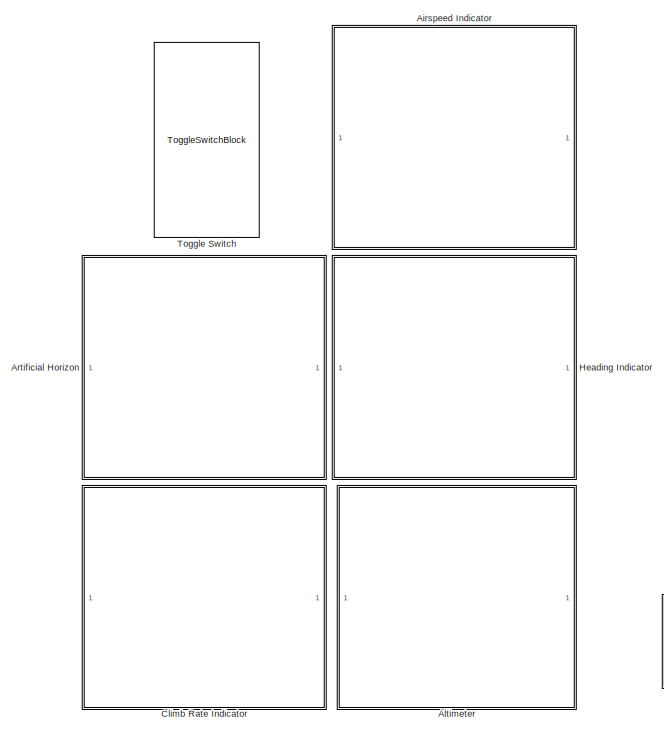
[diagram: root canvas - part 1/2, left side, full height]
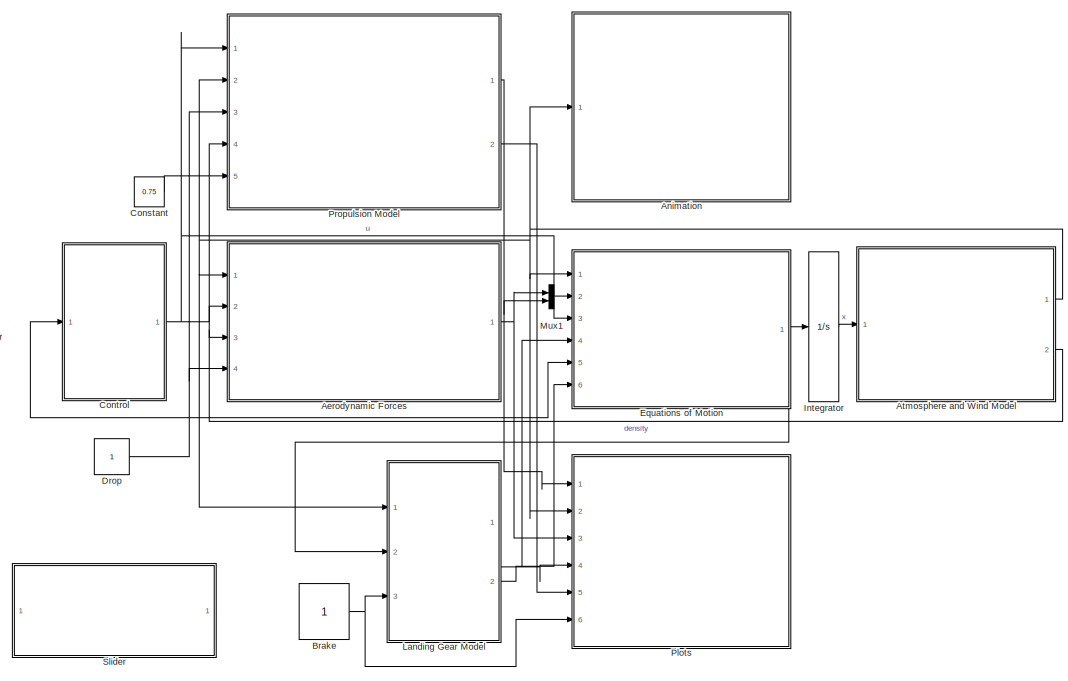
[diagram: root canvas - part 2/2, right side, full height]
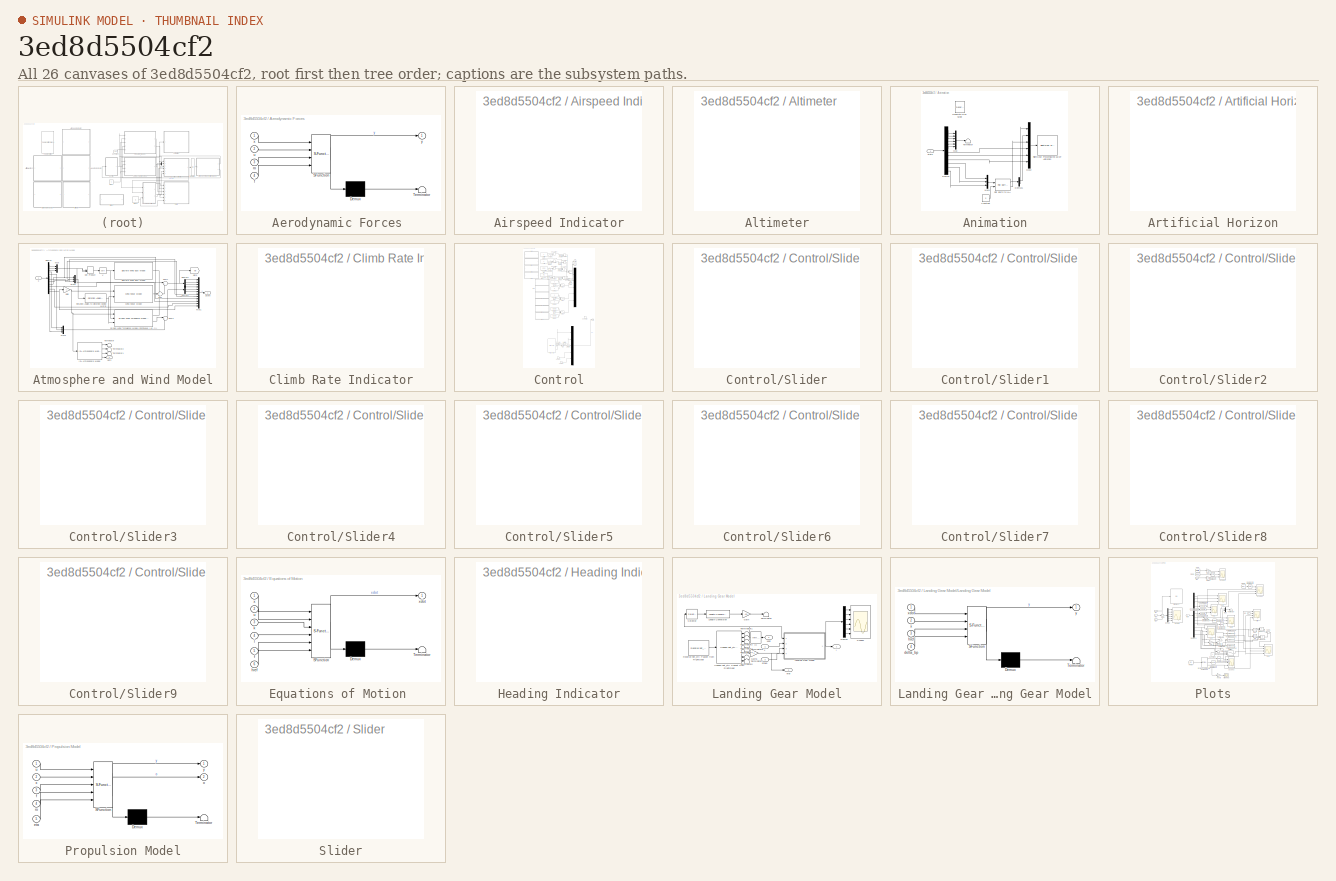
[diagram: thumbnail index - all 26 canvases of the model, root first then tree order]
MODEL slx_3ed8d5504cf2
KIND model
CONFIG AbsTol = auto
CONFIG EnableMultiTasking = on
CONFIG FixedStep = 1/480
CONFIG MaxStep = auto
CONFIG MinStep = auto
CONFIG RelTol = 1e-2
CONFIG SampleTimeConstraint = Unconstrained
CONFIG Solver = VariableStepAuto
CONFIG SolverName = VariableStepAuto
CONFIG StartTime = 0.0
CONFIG StopTime = 1000
WORKSPACE source: MAT-file member
WORKSPACE MCOS: class17 (value not decoded)
BLOCK [SubSystem] Aerodynamic Forces 
  ErrorFcn = Stateflow.Translate.translate
  PermitHierarchicalResolution = ExplicitOnly
  Ports = [4, 1]
  RequestExecContextInheritance = off
  SFBlockType = MATLAB Function
  TreatAsAtomicUnit = on
BLOCK [Demux] Aerodynamic Forces / Demux 
  Outputs = 1
  Ports = [1, 1]
BLOCK [S-Function] Aerodynamic Forces / SFunction 
  EnableBusSupport = on
  FunctionName = sf_sfun
  PortCounts = [4 2]
  Ports = [4, 2]
  SFcnIsStateOwnerBlock = off
  SFunctionDeploymentMode = off
  Tag = Stateflow S-Function Model 1
BLOCK [Terminator] Aerodynamic Forces / Terminator 
BLOCK [Inport] Aerodynamic Forces /f
  IconDisplay = Port number
  Port = 4
BLOCK [Inport] Aerodynamic Forces /ro
  IconDisplay = Port number
  Port = 3
BLOCK [Inport] Aerodynamic Forces /u
  IconDisplay = Port number
  Port = 2
BLOCK [Inport] Aerodynamic Forces /x
  IconDisplay = Port number
BLOCK [Outport] Aerodynamic Forces /y
  IconDisplay = Port number
BLOCK [SubSystem] Airspeed Indicator
  DialogController = aeroblksHMICreateDDGDialog
  IsWebBlock = on
  Ports = []
  RequestExecContextInheritance = off
BLOCK [SubSystem] Altimeter
  DialogController = aeroblksHMICreateDDGDialog
  IsWebBlock = on
  Ports = []
  RequestExecContextInheritance = off
BLOCK [SubSystem] Animation
  Ports = [1]
  RequestExecContextInheritance = off
BLOCK [Constant] Animation/Constant
  Value = 0
BLOCK [Demux] Animation/Demux
  DisplayOption = bar
  Outputs = 12
  Ports = [1, 12]
BLOCK [Demux] Animation/Demux1
  DisplayOption = bar
  Outputs = 2
  Ports = [1, 2]
BLOCK [Reference] Animation/Flat Earth to LLA  REF=aerolibtransform2/Flat Earth to LLA
  Ports = [2, 2]
  SourceBlock = aerolibtransform2/Flat Earth to LLA
  SourceProductBaseCode = AE
  SourceProductName = Aerospace Blockset
  SourceType = Flat Earth to LLA
BLOCK [Reference] Animation/FlightGear Preconfigured 6DoF Animation  REF=aerolibfltsims/FlightGear
Preconfigured
6DoF Animation
  AttributesFormatString = Version Selected: %<xFlightGearVersion>
  Ports = [1]
  SourceBlock = aerolibfltsims/FlightGear\nPreconfigured\n6DoF Animation
  SourceProductBaseCode = AE
  SourceProductName = Aerospace Blockset
  SourceType = FlightGearQuick6DoFAnimation
BLOCK [Reference] Animation/Generate Run Script  REF=aerolibfltsims/Generate
Run Script
  Ports = []
  SourceBlock = aerolibfltsims/Generate\nRun Script
  SourceProductBaseCode = AE
  SourceProductName = Aerospace Blockset
  SourceType = Generate FlightGear Run Script
BLOCK [Mux] Animation/Mux
  DisplayOption = bar
  Inputs = 6
  Ports = [6, 1]
BLOCK [Mux] Animation/Mux2
  DisplayOption = bar
  Inputs = 6
  Ports = [6, 1]
BLOCK [Mux] Animation/Mux3
  DisplayOption = bar
  Inputs = 3
  Ports = [3, 1]
BLOCK [Inport] Animation/State
  IconDisplay = Port number
BLOCK [Terminator] Animation/Terminator
BLOCK [SubSystem] Artificial Horizon
  DialogController = aeroblksHMICreateDDGDialog
  IsWebBlock = on
  Ports = []
  RequestExecContextInheritance = off
BLOCK [SubSystem] Atmosphere and Wind Model
  Ports = [1, 2]
  RequestExecContextInheritance = off
BLOCK [Demux] Atmosphere and Wind Model/Demux
  DisplayOption = bar
  Outputs = 12
  Ports = [1, 12]
BLOCK [Demux] Atmosphere and Wind Model/Demux1
  DisplayOption = bar
  Outputs = 3
  Ports = [1, 3]
BLOCK [Demux] Atmosphere and Wind Model/Demux2
  DisplayOption = bar
  Outputs = 3
  Ports = [1, 3]
BLOCK [Reference] Atmosphere and Wind Model/Discrete Wind Gust Model  REF=aerolibwind2/Discrete Wind Gust Model
  Ports = [1, 1]
  SourceBlock = aerolibwind2/Discrete Wind Gust Model
  SourceProductBaseCode = AE
  SourceProductName = Aerospace Blockset
  SourceType = Discrete Wind Gust Model
BLOCK [DotProduct] Atmosphere and Wind Model/Dot Product
  OutDataTypeStr = Inherit: Inherit via internal rule
BLOCK [Reference] Atmosphere and Wind Model/Dryden Wind Turbulence Model (Continuous (+q -r))  REF=aerolibwind2/Dryden Wind Turbulence Model 
(Continuous (+q -r))
  Ports = [3, 2]
  SourceBlock = aerolibwind2/Dryden Wind Turbulence Model \n(Continuous (+q -r))
  SourceProductBaseCode = AE
  SourceProductName = Aerospace Blockset
  SourceType = Wind Turbulence Model
BLOCK [Gain] Atmosphere and Wind Model/Gain
  Gain = -1
  OutDataTypeStr = Inherit: Inherit via internal rule
  ParamDataTypeStr = Inherit: Inherit via internal rule
  SaturateOnIntegerOverflow = off
BLOCK [Goto] Atmosphere and Wind Model/Goto
  GotoTag = Vb
  TagVisibility = global
BLOCK [Reference] Atmosphere and Wind Model/ISA Atmosphere Model  REF=aerolibatmos2/ISA Atmosphere Model
  Ports = [1, 4]
  SourceBlock = aerolibatmos2/ISA Atmosphere Model
  SourceProductBaseCode = AE
  SourceProductName = Aerospace Blockset
  SourceType = International Standard Atmosphere Model
BLOCK [Mux] Atmosphere and Wind Model/Mux
  DisplayOption = bar
  Inputs = 3
  Ports = [3, 1]
BLOCK [Mux] Atmosphere and Wind Model/Mux1
  DisplayOption = bar
  Inputs = 12
  Ports = [12, 1]
BLOCK [Mux] Atmosphere and Wind Model/Mux2
  DisplayOption = bar
  Inputs = 3
  Ports = [3, 1]
BLOCK [Mux] Atmosphere and Wind Model/Mux3
  DisplayOption = bar
  Inputs = 3
  Ports = [3, 1]
BLOCK [Outport] Atmosphere and Wind Model/Out2
  IconDisplay = Port number
  Port = 2
BLOCK [Reference] Atmosphere and Wind Model/Rotation Angles to Direction Cosine Matrix  REF=sharedtransform/Rotation Angles to
Direction Cosine Matrix
  AttributesFormatString = Rotation Order: %<rotationOrder>
  Ports = [1, 1]
  SourceBlock = sharedtransform/Rotation Angles to\nDirection Cosine Matrix
  SourceProductBaseCode = AE
  SourceProductName = Aerospace Blockset
  SourceType = Ang2DCM
BLOCK [Outport] Atmosphere and Wind Model/State
  IconDisplay = Port number
  PortDimensions = 12
BLOCK [Sum] Atmosphere and Wind Model/Sum
  IconShape = round
  InputSameDT = off
  Inputs = +++
  OutDataTypeStr = Inherit: Inherit via internal rule
  Ports = [3, 1]
  SaturateOnIntegerOverflow = off
BLOCK [Sum] Atmosphere and Wind Model/Sum1
  IconShape = round
  InputSameDT = off
  Inputs = |+-
  OutDataTypeStr = Inherit: Inherit via internal rule
  Ports = [2, 1]
  SaturateOnIntegerOverflow = off
BLOCK [Sum] Atmosphere and Wind Model/Sum2
  IconShape = round
  InputSameDT = off
  Inputs = |++
  OutDataTypeStr = Inherit: Inherit via internal rule
  Ports = [2, 1]
  SaturateOnIntegerOverflow = off
BLOCK [Terminator] Atmosphere and Wind Model/Terminator
BLOCK [Terminator] Atmosphere and Wind Model/Terminator1
BLOCK [Terminator] Atmosphere and Wind Model/Terminator2
BLOCK [Sqrt] Atmosphere and Wind Model/V
BLOCK [Reference] Atmosphere and Wind Model/Wind Shear Model  REF=aerolibwind2/Wind Shear Model
  Ports = [2, 1]
  SourceBlock = aerolibwind2/Wind Shear Model
  SourceProductBaseCode = AE
  SourceProductName = Aerospace Blockset
  SourceType = Wind Shear Model
BLOCK [Inport] Atmosphere and Wind Model/x
  IconDisplay = Port number
BLOCK [SubSystem] Climb Rate Indicator
  DialogController = aeroblksHMICreateDDGDialog
  IsWebBlock = on
  Ports = []
  RequestExecContextInheritance = off
BLOCK [Constant] Constant
  Value = 0.75
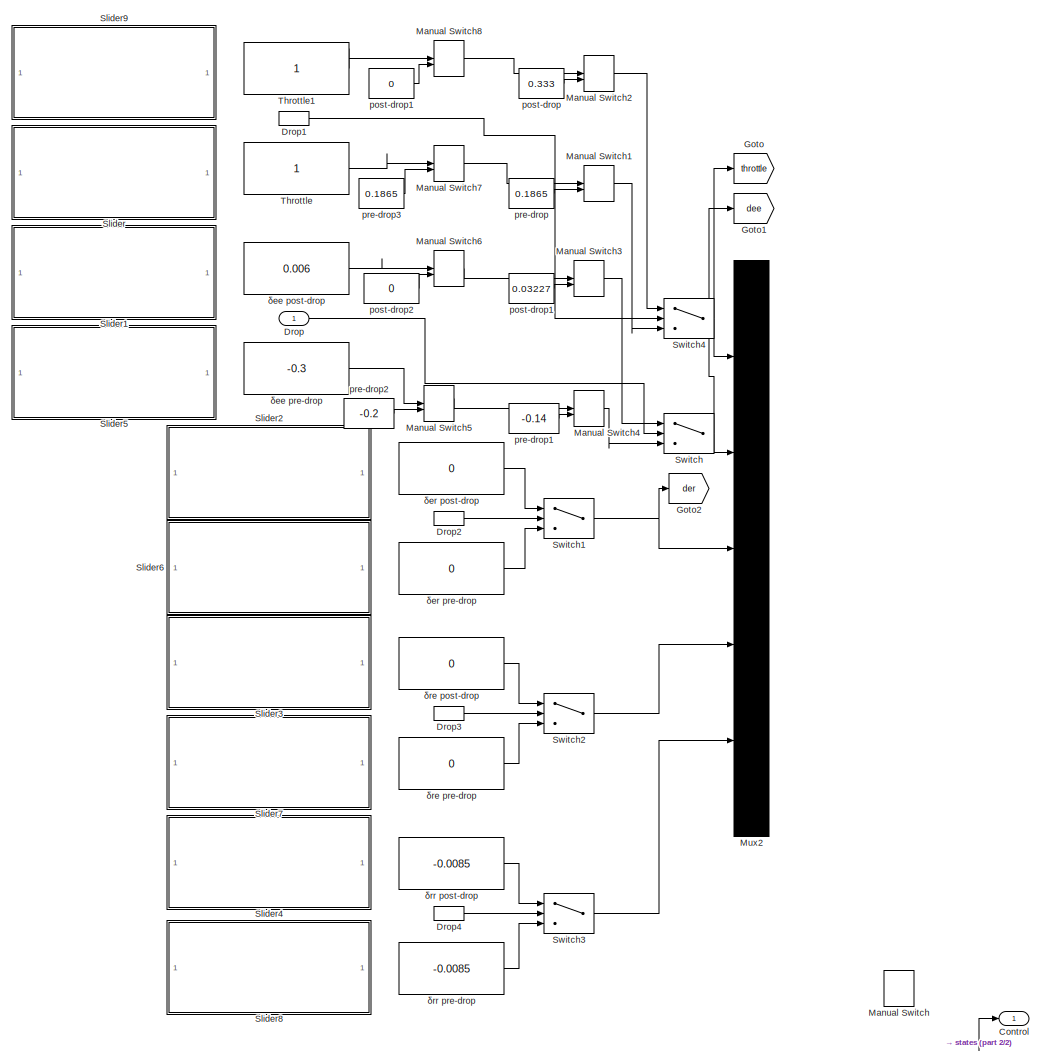
[diagram: Control - part 1/2, full width, top band]
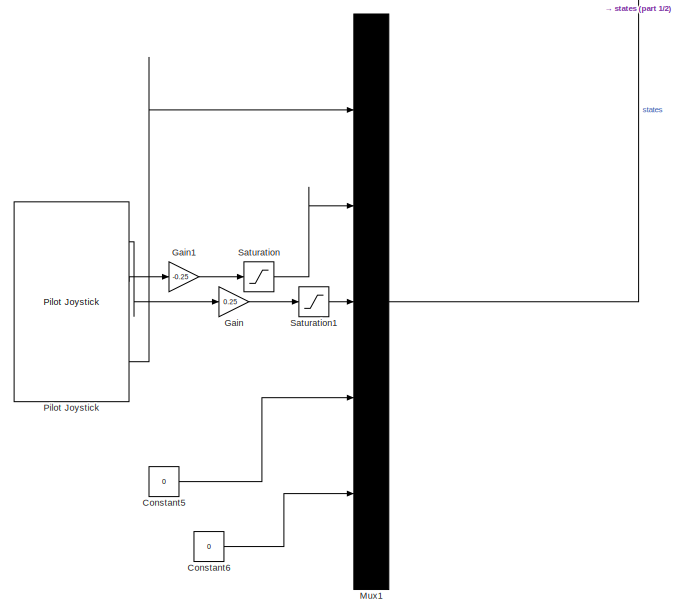
[diagram: Control - part 2/2, bottom center region]
BLOCK [SubSystem] Control
  Ports = [1, 1]
  RequestExecContextInheritance = off
BLOCK [Constant] Control/Constant5
  Value = 0
BLOCK [Constant] Control/Constant6
  Value = 0
BLOCK [Outport] Control/Control
  IconDisplay = Port number
BLOCK [Inport] Control/Drop
  IconDisplay = Port number
BLOCK [InportShadow] Control/Drop1
  IconDisplay = Port number
BLOCK [InportShadow] Control/Drop2
  IconDisplay = Port number
BLOCK [InportShadow] Control/Drop3
  IconDisplay = Port number
BLOCK [InportShadow] Control/Drop4
  IconDisplay = Port number
BLOCK [Gain] Control/Gain
  Gain = 0.25
  OutDataTypeStr = Inherit: Inherit via internal rule
  ParamDataTypeStr = Inherit: Inherit via internal rule
  SaturateOnIntegerOverflow = off
BLOCK [Gain] Control/Gain1
  Gain = -0.25
  OutDataTypeStr = Inherit: Inherit via internal rule
  ParamDataTypeStr = Inherit: Inherit via internal rule
  SaturateOnIntegerOverflow = off
BLOCK [Goto] Control/Goto
  Commented = on
  GotoTag = throttle
  TagVisibility = global
BLOCK [Goto] Control/Goto1
  Commented = on
  GotoTag = dee
  TagVisibility = global
BLOCK [Goto] Control/Goto2
  Commented = on
  GotoTag = der
  TagVisibility = global
BLOCK [ManualSwitch] Control/Manual Switch
  Commented = on
BLOCK [ManualSwitch] Control/Manual Switch1
  Commented = on
BLOCK [ManualSwitch] Control/Manual Switch2
  Commented = on
BLOCK [ManualSwitch] Control/Manual Switch3
  Commented = on
BLOCK [ManualSwitch] Control/Manual Switch4
  Commented = on
BLOCK [ManualSwitch] Control/Manual Switch5
  Commented = on
BLOCK [ManualSwitch] Control/Manual Switch6
  Commented = on
  CurrentSetting = 0
BLOCK [ManualSwitch] Control/Manual Switch7
  Commented = on
BLOCK [ManualSwitch] Control/Manual Switch8
  Commented = on
BLOCK [Mux] Control/Mux1
  DisplayOption = bar
  Inputs = 5
  Ports = [5, 1]
BLOCK [Mux] Control/Mux2
  Commented = on
  DisplayOption = bar
  Inputs = 5
  Ports = [5, 1]
BLOCK [Reference] Control/Pilot Joystick  REF=aerolibanimutils/Pilot Joystick
  Ports = [0, 4]
  SourceBlock = aerolibanimutils/Pilot Joystick
  SourceProductBaseCode = AE
  SourceProductName = Aerospace Blockset
  SourceType = PilotJoystick
BLOCK [Saturate] Control/Saturation
  InputPortMap = u0
  LowerLimit = -0.4
  Ports = [1, 1]
  UpperLimit = 0.4
BLOCK [Saturate] Control/Saturation1
  InputPortMap = u0
  LowerLimit = -0.4
  Ports = [1, 1]
  UpperLimit = 0.4
BLOCK [SubSystem] Control/Slider
  Commented = on
  DialogController = hmiCreateDDGDialog
  IsWebBlock = on
  MaskHideContents = on
  Ports = []
  RequestExecContextInheritance = off
BLOCK [SubSystem] Control/Slider1
  Commented = on
  DialogController = hmiCreateDDGDialog
  IsWebBlock = on
  MaskHideContents = on
  Ports = []
  RequestExecContextInheritance = off
BLOCK [SubSystem] Control/Slider2
  Commented = on
  DialogController = hmiCreateDDGDialog
  IsWebBlock = on
  MaskHideContents = on
  Ports = []
  RequestExecContextInheritance = off
BLOCK [SubSystem] Control/Slider3
  Commented = on
  DialogController = hmiCreateDDGDialog
  IsWebBlock = on
  MaskHideContents = on
  Ports = []
  RequestExecContextInheritance = off
BLOCK [SubSystem] Control/Slider4
  Commented = on
  DialogController = hmiCreateDDGDialog
  IsWebBlock = on
  MaskHideContents = on
  Ports = []
  RequestExecContextInheritance = off
BLOCK [SubSystem] Control/Slider5
  Commented = on
  DialogController = hmiCreateDDGDialog
  IsWebBlock = on
  MaskHideContents = on
  Ports = []
  RequestExecContextInheritance = off
BLOCK [SubSystem] Control/Slider6
  Commented = on
  DialogController = hmiCreateDDGDialog
  IsWebBlock = on
  MaskHideContents = on
  Ports = []
  RequestExecContextInheritance = off
BLOCK [SubSystem] Control/Slider7
  Commented = on
  DialogController = hmiCreateDDGDialog
  IsWebBlock = on
  MaskHideContents = on
  Ports = []
  RequestExecContextInheritance = off
BLOCK [SubSystem] Control/Slider8
  Commented = on
  DialogController = hmiCreateDDGDialog
  IsWebBlock = on
  MaskHideContents = on
  Ports = []
  RequestExecContextInheritance = off
BLOCK [SubSystem] Control/Slider9
  Commented = on
  DialogController = hmiCreateDDGDialog
  IsWebBlock = on
  MaskHideContents = on
  Ports = []
  RequestExecContextInheritance = off
BLOCK [Switch] Control/Switch
  Commented = on
  Criteria = u2 > Threshold
  InputSameDT = off
  SaturateOnIntegerOverflow = off
  Threshold = 0.5
BLOCK [Switch] Control/Switch1
  Commented = on
  Criteria = u2 > Threshold
  InputSameDT = off
  SaturateOnIntegerOverflow = off
  Threshold = 0.5
BLOCK [Switch] Control/Switch2
  Commented = on
  Criteria = u2 > Threshold
  InputSameDT = off
  SaturateOnIntegerOverflow = off
  Threshold = 0.5
BLOCK [Switch] Control/Switch3
  Commented = on
  Criteria = u2 > Threshold
  InputSameDT = off
  SaturateOnIntegerOverflow = off
  Threshold = 0.5
BLOCK [Switch] Control/Switch4
  Commented = on
  Criteria = u2 > Threshold
  InputSameDT = off
  SaturateOnIntegerOverflow = off
  Threshold = 0.5
BLOCK [Constant] Control/Throttle
  Commented = on
BLOCK [Constant] Control/Throttle1
  Commented = on
BLOCK [Constant] Control/post-drop1
  Commented = on
  Value = 0.03227
BLOCK [Constant] Control/post-drop2
  Commented = on
  Value = 0
BLOCK [Constant] Control/pre-drop
  Commented = on
  Value = 0.1865
BLOCK [Constant] Control/pre-drop1
  Commented = on
  Value = -0.14
BLOCK [Constant] Control/pre-drop2
  Commented = on
  Value = -0.2
BLOCK [Constant] Control/pre-drop3
  Commented = on
  Value = 0.1865
BLOCK [Constant] Control/pοst-drop
  Commented = on
  Value = 0.333
BLOCK [Constant] Control/pοst-drop1
  Commented = on
  Value = 0
BLOCK [Constant] Control/δee post-drop
  Commented = on
  Value = 0.006
BLOCK [Constant] Control/δee pre-drop
  Commented = on
  Value = -0.3
BLOCK [Constant] Control/δer post-drop
  Commented = on
  Value = 0
BLOCK [Constant] Control/δer pre-drop
  Commented = on
  Value = 0
BLOCK [Constant] Control/δre post-drop
  Commented = on
  Value = 0
BLOCK [Constant] Control/δre pre-drop
  Commented = on
  Value = 0
BLOCK [Constant] Control/δrr post-drop
  Commented = on
  Value = -0.0085
BLOCK [Constant] Control/δrr pre-drop
  Commented = on
  Value = -0.0085
BLOCK [Constant] Drop
BLOCK [SubSystem] Equations of Motion 
  ErrorFcn = Stateflow.Translate.translate
  PermitHierarchicalResolution = ExplicitOnly
  Ports = [6, 1]
  RequestExecContextInheritance = off
  SFBlockType = MATLAB Function
  TreatAsAtomicUnit = on
BLOCK [Demux] Equations of Motion / Demux 
  Outputs = 1
  Ports = [1, 1]
BLOCK [S-Function] Equations of Motion / SFunction 
  EnableBusSupport = on
  FunctionName = sf_sfun
  PortCounts = [6 2]
  Ports = [6, 2]
  SFcnIsStateOwnerBlock = off
  SFunctionDeploymentMode = off
  Tag = Stateflow S-Function Model 3
BLOCK [Terminator] Equations of Motion / Terminator 
BLOCK [Inport] Equations of Motion /f
  IconDisplay = Port number
  Port = 5
BLOCK [Inport] Equations of Motion /href
  IconDisplay = Port number
  Port = 6
BLOCK [Inport] Equations of Motion /k
  IconDisplay = Port number
  Port = 3
BLOCK [Inport] Equations of Motion /l
  IconDisplay = Port number
  Port = 4
BLOCK [Inport] Equations of Motion /u
  IconDisplay = Port number
  Port = 2
BLOCK [Inport] Equations of Motion /x
  IconDisplay = Port number
BLOCK [Outport] Equations of Motion /xdot
  IconDisplay = Port number
BLOCK [SubSystem] Heading Indicator
  DialogController = aeroblksHMICreateDDGDialog
  IsWebBlock = on
  Ports = []
  RequestExecContextInheritance = off
BLOCK [Integrator] Integrator
  InitialCondition = [30 0 0 0 0 0 0 0 0 0 0 -50]'
  Ports = [1, 1]
BLOCK [SubSystem] Landing Gear Model
  Ports = [3, 2]
  RequestExecContextInheritance = off
BLOCK [Demux] Landing Gear Model/Demux
  DisplayOption = bar
  Outputs = 6
  Ports = [1, 6]
BLOCK [Gain] Landing Gear Model/Gain
  Gain = -60
  OutDataTypeStr = Inherit: Inherit via internal rule
  ParamDataTypeStr = Inherit: Inherit via internal rule
  SaturateOnIntegerOverflow = off
BLOCK [Gain] Landing Gear Model/Gain1
  Gain = -1
  OutDataTypeStr = Inherit: Inherit via internal rule
  ParamDataTypeStr = Inherit: Inherit via internal rule
  SaturateOnIntegerOverflow = off
BLOCK [InitialCondition] Landing Gear Model/IC
  Value = [0 0 0 0 0 0 0 0 0 0 0 0]'
BLOCK [SubSystem] Landing Gear Model/Landing Gear Model
  ErrorFcn = Stateflow.Translate.translate
  PermitHierarchicalResolution = ExplicitOnly
  Ports = [4, 1]
  RequestExecContextInheritance = off
  SFBlockType = MATLAB Function
  TreatAsAtomicUnit = on
BLOCK [Demux] Landing Gear Model/Landing Gear Model/ Demux 
  Outputs = 1
  Ports = [1, 1]
BLOCK [S-Function] Landing Gear Model/Landing Gear Model/ SFunction 
  EnableBusSupport = on
  FunctionName = sf_sfun
  PortCounts = [4 2]
  Ports = [4, 2]
  SFcnIsStateOwnerBlock = off
  SFunctionDeploymentMode = off
  Tag = Stateflow S-Function Model 4
BLOCK [Terminator] Landing Gear Model/Landing Gear Model/ Terminator 
BLOCK [Inport] Landing Gear Model/Landing Gear Model/delta_bp
  IconDisplay = Port number
  Port = 4
BLOCK [Inport] Landing Gear Model/Landing Gear Model/href
  IconDisplay = Port number
  Port = 3
BLOCK [Inport] Landing Gear Model/Landing Gear Model/x
  IconDisplay = Port number
  Port = 2
BLOCK [Inport] Landing Gear Model/Landing Gear Model/xdot
  IconDisplay = Port number
BLOCK [Outport] Landing Gear Model/Landing Gear Model/y
  IconDisplay = Port number
BLOCK [Reference] Landing Gear Model/Length Conversion  REF=aerolibconvert2/Length Conversion
  Ports = [1, 1]
  SourceBlock = aerolibconvert2/Length Conversion
  SourceProductBaseCode = AE
  SourceProductName = Aerospace Blockset
  SourceType = Length Conversion
BLOCK [Reference] Landing Gear Model/Receive net_ctrl Packet from FlightGear  REF=aerolibfltsims/Receive net_ctrl
Packet from FlightGear
  AttributesFormatString = Version Selected:\n%<FlightGearVersion>
  Ports = [0, 1]
  SourceBlock = aerolibfltsims/Receive net_ctrl\nPacket from FlightGear
  SourceProductBaseCode = AE
  SourceProductName = Aerospace Blockset
  SourceType = FlightGearReceiveNetCtrl
BLOCK [Scope] Landing Gear Model/Scope1
  Floating = off
  NumInputPorts = 6
  Ports = [6]
  ScopeSpecificationString = Simulink.scopes.TimeScopeBlockCfg('CurrentConfiguration', extmgr.ConfigurationSet(extmgr.Configuration('Core','General UI',true),extmgr.Configuration('Core','Source UI',true),extmgr.Configuration('Sources','WiredSimulink',true,'DataLoggingVariableName','ScopeData1'),extmgr.Configuration('Visuals','Time Domain',true,'SerializedDisplays',{struct('MinYLimReal','-586.80803','MaxYLimReal','280.79932','...<+4888ch>
BLOCK [Selector] Landing Gear Model/Selector
  IndexOptions = Index vector (dialog)
  Indices = [12]
  InputPortWidth = 12
  OutputSizes = 1
  Ports = [1, 1]
BLOCK [Terminator] Landing Gear Model/Terminator
BLOCK [Terminator] Landing Gear Model/Terminator1
BLOCK [Terminator] Landing Gear Model/Terminator2
BLOCK [Terminator] Landing Gear Model/Terminator3
BLOCK [Terminator] Landing Gear Model/Terminator4
BLOCK [Terminator] Landing Gear Model/Terminator5
BLOCK [Terminator] Landing Gear Model/Terminator6
BLOCK [Terminator] Landing Gear Model/Terminator7
BLOCK [Reference] Landing Gear Model/Unpack net_ctrl Packet from FlightGear  REF=aerolibfltsims/Unpack
net_ctrl Packet
from FlightGear
  AttributesFormatString = Version Selected: %<FlightGearVersion>
  Ports = [1, 8]
  SourceBlock = aerolibfltsims/Unpack\nnet_ctrl Packet\nfrom FlightGear
  SourceProductBaseCode = AE
  SourceProductName = Aerospace Blockset
  SourceType = FlightGearUnpackNetCtrl
BLOCK [Inport] Landing Gear Model/brake
  IconDisplay = Port number
  Port = 3
BLOCK [Outport] Landing Gear Model/href
  IconDisplay = Port number
  Port = 2
BLOCK [Outport] Landing Gear Model/l
  IconDisplay = Port number
BLOCK [Inport] Landing Gear Model/x
  IconDisplay = Port number
BLOCK [Inport] Landing Gear Model/xdot
  IconDisplay = Port number
  Port = 2
BLOCK [Mux] Mux1
  DisplayOption = bar
  Inputs = 2
  Ports = [2, 1]
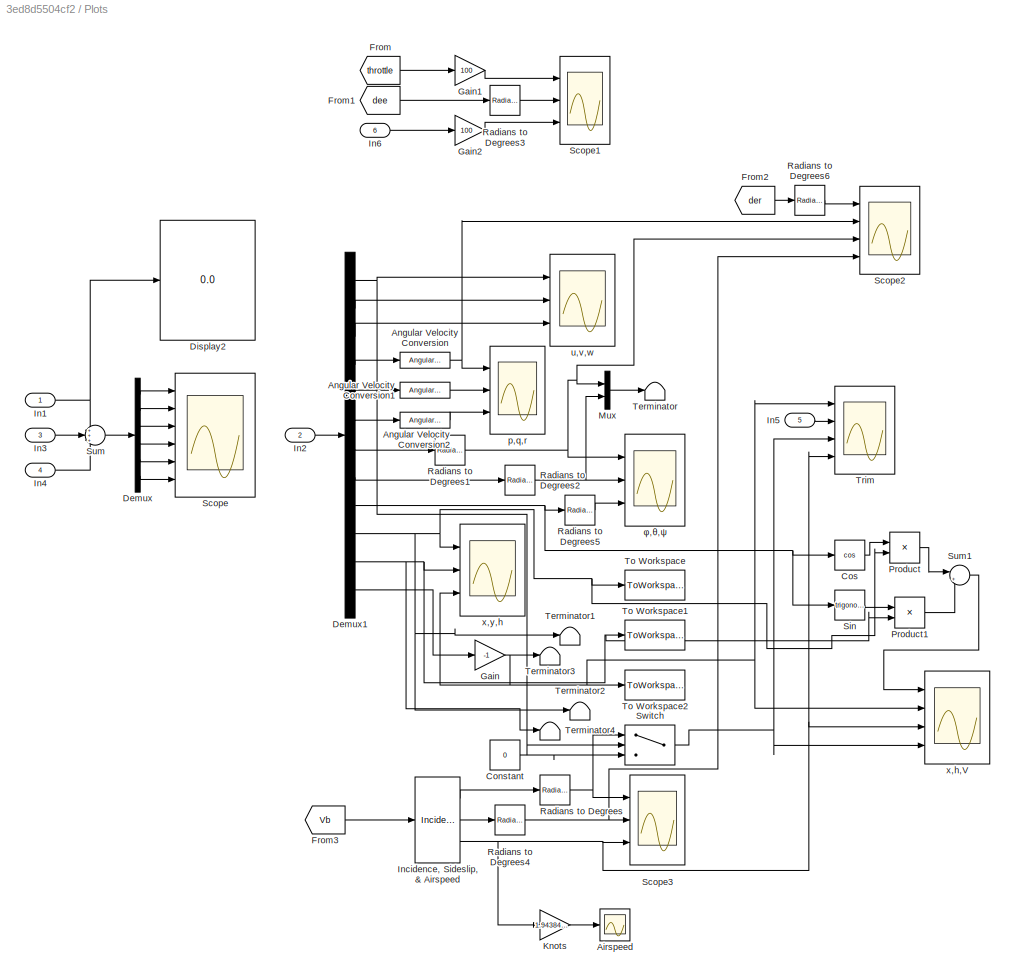
BLOCK [SubSystem] Plots
  Ports = [6]
  RequestExecContextInheritance = off
BLOCK [Scope] Plots/Airspeed
  Floating = off
  NumInputPorts = 1
  Ports = [1]
  ScopeSpecificationString = Simulink.scopes.TimeScopeBlockCfg('CurrentConfiguration', extmgr.ConfigurationSet(extmgr.Configuration('Core','General UI',true),extmgr.Configuration('Core','Source UI',true),extmgr.Configuration('Sources','WiredSimulink',true,'DataLoggingVariableName','ScopeData3'),extmgr.Configuration('Visuals','Time Domain',true,'SerializedDisplays',{struct('MinYLimReal','0','MaxYLimReal','200','YLabelReal','V ...<+1415ch>
BLOCK [Reference] Plots/Angular Velocity Conversion  REF=aerolibconvert2/Angular Velocity
Conversion
  Ports = [1, 1]
  SourceBlock = aerolibconvert2/Angular Velocity\nConversion
  SourceProductBaseCode = AE
  SourceProductName = Aerospace Blockset
  SourceType = Angular Velocity Conversion
BLOCK [Reference] Plots/Angular Velocity Conversion1  REF=aerolibconvert2/Angular Velocity
Conversion
  Ports = [1, 1]
  SourceBlock = aerolibconvert2/Angular Velocity\nConversion
  SourceProductBaseCode = AE
  SourceProductName = Aerospace Blockset
  SourceType = Angular Velocity Conversion
BLOCK [Reference] Plots/Angular Velocity Conversion2  REF=aerolibconvert2/Angular Velocity
Conversion
  Ports = [1, 1]
  SourceBlock = aerolibconvert2/Angular Velocity\nConversion
  SourceProductBaseCode = AE
  SourceProductName = Aerospace Blockset
  SourceType = Angular Velocity Conversion
BLOCK [Constant] Plots/Constant
  Value = 0
BLOCK [Trigonometry] Plots/Cos
  Operator = cos
  Ports = [1, 1]
BLOCK [Demux] Plots/Demux
  DisplayOption = bar
  Outputs = 6
  Ports = [1, 6]
BLOCK [Demux] Plots/Demux1
  DisplayOption = bar
  Outputs = 12
  Ports = [1, 12]
BLOCK [Display] Plots/Display2
  Decimation = 1
  Ports = [1]
BLOCK [From] Plots/From
  GotoTag = throttle
BLOCK [From] Plots/From1
  GotoTag = dee
BLOCK [From] Plots/From2
  GotoTag = der
BLOCK [From] Plots/From3
  GotoTag = Vb
  TagVisibility = global
BLOCK [Gain] Plots/Gain
  Gain = -1
  OutDataTypeStr = Inherit: Inherit via internal rule
  ParamDataTypeStr = Inherit: Inherit via internal rule
  SaturateOnIntegerOverflow = off
BLOCK [Gain] Plots/Gain1
  Gain = 100
  OutDataTypeStr = Inherit: Inherit via internal rule
  ParamDataTypeStr = Inherit: Inherit via internal rule
  SaturateOnIntegerOverflow = off
BLOCK [Gain] Plots/Gain2
  Gain = 100
  OutDataTypeStr = Inherit: Inherit via internal rule
  ParamDataTypeStr = Inherit: Inherit via internal rule
  SaturateOnIntegerOverflow = off
BLOCK [Inport] Plots/In1
  IconDisplay = Port number
BLOCK [Inport] Plots/In2
  IconDisplay = Port number
  Port = 2
BLOCK [Inport] Plots/In3
  IconDisplay = Port number
  Port = 3
BLOCK [Inport] Plots/In4
  IconDisplay = Port number
  Port = 4
BLOCK [Inport] Plots/In5
  IconDisplay = Port number
  Port = 5
BLOCK [Inport] Plots/In6
  IconDisplay = Port number
  Port = 6
BLOCK [Reference] Plots/Incidence, Sideslip, & Airspeed  REF=aerolibasang/Incidence, Sideslip,
& Airspeed
  Ports = [1, 3]
  SourceBlock = aerolibasang/Incidence, Sideslip,\n& Airspeed
  SourceProductBaseCode = AE
  SourceProductName = Aerospace Blockset
  SourceType = Incidence,Sideslip,&Airspeed
BLOCK [Gain] Plots/Knots
  Gain = 1.94384449
  OutDataTypeStr = Inherit: Inherit via internal rule
  ParamDataTypeStr = Inherit: Inherit via internal rule
  SaturateOnIntegerOverflow = off
BLOCK [Mux] Plots/Mux
  DisplayOption = bar
  Inputs = 2
  Ports = [2, 1]
BLOCK [Product] Plots/Product
  InputSameDT = off
  OutDataTypeStr = Inherit: Inherit via internal rule
  Ports = [2, 1]
  RndMeth = Floor
  SaturateOnIntegerOverflow = off
BLOCK [Product] Plots/Product1
  InputSameDT = off
  OutDataTypeStr = Inherit: Inherit via internal rule
  Ports = [2, 1]
  RndMeth = Floor
  SaturateOnIntegerOverflow = off
BLOCK [Reference] Plots/Radians to Degrees  REF=simulink_extras/Transformations/Radians
to Degrees
  Ports = [1, 1]
  SourceBlock = simulink_extras/Transformations/Radians\nto Degrees
  SourceProductBaseCode = SL
  SourceProductName = Simulink
  SourceType = RadiansToDegrees
BLOCK [Reference] Plots/Radians to Degrees1  REF=simulink_extras/Transformations/Radians
to Degrees
  Ports = [1, 1]
  SourceBlock = simulink_extras/Transformations/Radians\nto Degrees
  SourceProductBaseCode = SL
  SourceProductName = Simulink
  SourceType = RadiansToDegrees
BLOCK [Reference] Plots/Radians to Degrees2  REF=simulink_extras/Transformations/Radians
to Degrees
  Ports = [1, 1]
  SourceBlock = simulink_extras/Transformations/Radians\nto Degrees
  SourceProductBaseCode = SL
  SourceProductName = Simulink
  SourceType = RadiansToDegrees
BLOCK [Reference] Plots/Radians to Degrees3  REF=simulink_extras/Transformations/Radians
to Degrees
  Ports = [1, 1]
  SourceBlock = simulink_extras/Transformations/Radians\nto Degrees
  SourceProductBaseCode = SL
  SourceProductName = Simulink
  SourceType = RadiansToDegrees
BLOCK [Reference] Plots/Radians to Degrees4  REF=simulink_extras/Transformations/Radians
to Degrees
  Ports = [1, 1]
  SourceBlock = simulink_extras/Transformations/Radians\nto Degrees
  SourceProductBaseCode = SL
  SourceProductName = Simulink
  SourceType = RadiansToDegrees
BLOCK [Reference] Plots/Radians to Degrees5  REF=simulink_extras/Transformations/Radians
to Degrees
  Ports = [1, 1]
  SourceBlock = simulink_extras/Transformations/Radians\nto Degrees
  SourceProductBaseCode = SL
  SourceProductName = Simulink
  SourceType = RadiansToDegrees
BLOCK [Reference] Plots/Radians to Degrees6  REF=simulink_extras/Transformations/Radians
to Degrees
  Ports = [1, 1]
  SourceBlock = simulink_extras/Transformations/Radians\nto Degrees
  SourceProductBaseCode = SL
  SourceProductName = Simulink
  SourceType = RadiansToDegrees
BLOCK [Scope] Plots/Scope
  Floating = off
  NumInputPorts = 6
  Ports = [6]
  ScopeSpecificationString = Simulink.scopes.TimeScopeBlockCfg('CurrentConfiguration', extmgr.ConfigurationSet(extmgr.Configuration('Core','General UI',true),extmgr.Configuration('Core','Source UI',true),extmgr.Configuration('Sources','WiredSimulink',true,'DataLoggingVariableName','ScopeData3'),extmgr.Configuration('Visuals','Time Domain',true,'SerializedDisplays',{struct('MinYLimReal','9.32432','MaxYLimReal','367.48521','YLa...<+4822ch>
BLOCK [Scope] Plots/Scope1
  Floating = off
  NumInputPorts = 3
  Ports = [3]
  ScopeSpecificationString = Simulink.scopes.TimeScopeBlockCfg('CurrentConfiguration', extmgr.ConfigurationSet(extmgr.Configuration('Core','General UI',true),extmgr.Configuration('Core','Source UI',true),extmgr.Configuration('Sources','WiredSimulink',true,'DataLoggingVariableName','ScopeData1'),extmgr.Configuration('Visuals','Time Domain',true,'SerializedDisplays',{struct('MinYLimReal','90.00000','MaxYLimReal','110.00000','YL...<+2772ch>
BLOCK [Scope] Plots/Scope2
  Floating = off
  NumInputPorts = 4
  Ports = [4]
  ScopeSpecificationString = Simulink.scopes.TimeScopeBlockCfg('CurrentConfiguration', extmgr.ConfigurationSet(extmgr.Configuration('Core','General UI',true),extmgr.Configuration('Core','Source UI',true),extmgr.Configuration('Sources','WiredSimulink',true,'DataLoggingVariableName','ScopeData1'),extmgr.Configuration('Visuals','Time Domain',true,'SerializedDisplays',{struct('MinYLimReal','-0.12175','MaxYLimReal','1.09578','YLab...<+3542ch>
BLOCK [Scope] Plots/Scope3
  Floating = off
  NumInputPorts = 3
  Ports = [3]
  ScopeSpecificationString = Simulink.scopes.TimeScopeBlockCfg('CurrentConfiguration', extmgr.ConfigurationSet(extmgr.Configuration('Core','General UI',true),extmgr.Configuration('Core','Source UI',true),extmgr.Configuration('Sources','WiredSimulink',true,'DataLoggingVariableName','ScopeData4'),extmgr.Configuration('Visuals','Time Domain',true,'SerializedDisplays',{struct('MinYLimReal','-0.59152','MaxYLimReal','7.09666','YLab...<+2807ch>
BLOCK [Trigonometry] Plots/Sin
  Ports = [1, 1]
BLOCK [Sum] Plots/Sum
  IconShape = round
  InputSameDT = off
  Inputs = +++
  OutDataTypeStr = Inherit: Inherit via internal rule
  Ports = [3, 1]
  SaturateOnIntegerOverflow = off
BLOCK [Sum] Plots/Sum1
  IconShape = round
  InputSameDT = off
  Inputs = |++
  OutDataTypeStr = Inherit: Inherit via internal rule
  Ports = [2, 1]
  SaturateOnIntegerOverflow = off
BLOCK [Switch] Plots/Switch
  Criteria = u2 > Threshold
  InputSameDT = off
  SaturateOnIntegerOverflow = off
  Threshold = 5
BLOCK [Terminator] Plots/Terminator
BLOCK [Terminator] Plots/Terminator1
BLOCK [Terminator] Plots/Terminator2
BLOCK [Terminator] Plots/Terminator3
BLOCK [Terminator] Plots/Terminator4
BLOCK [ToWorkspace] Plots/To Workspace
  FixptAsFi = on
  MaxDataPoints = inf
  Ports = [1]
  SampleTime = -1
  Save2DSignal = 3-D array (concatenate along third dimension)
  VariableName = Xe
BLOCK [ToWorkspace] Plots/To Workspace1
  FixptAsFi = on
  MaxDataPoints = inf
  Ports = [1]
  SampleTime = -1
  Save2DSignal = 3-D array (concatenate along third dimension)
  VariableName = Ye
BLOCK [ToWorkspace] Plots/To Workspace2
  FixptAsFi = on
  MaxDataPoints = inf
  Ports = [1]
  SampleTime = -1
  Save2DSignal = 3-D array (concatenate along third dimension)
  VariableName = h
BLOCK [Scope] Plots/Trim
  Floating = off
  NumInputPorts = 4
  Ports = [4]
  ScopeSpecificationString = Simulink.scopes.TimeScopeBlockCfg('CurrentConfiguration', extmgr.ConfigurationSet(extmgr.Configuration('Core','General UI',true),extmgr.Configuration('Core','Source UI',true),extmgr.Configuration('Sources','WiredSimulink',true,'DataLoggingVariableName','ScopeData2'),extmgr.Configuration('Visuals','Time Domain',true,'SerializedDisplays',{struct('MinYLimReal','-50.14207','MaxYLimReal','499.77256','Y...<+3516ch>
BLOCK [Scope] Plots/p,q,r
  Floating = off
  NumInputPorts = 3
  Ports = [3]
  ScopeSpecificationString = Simulink.scopes.TimeScopeBlockCfg('CurrentConfiguration', extmgr.ConfigurationSet(extmgr.Configuration('Core','General UI',true),extmgr.Configuration('Core','Source UI',true),extmgr.Configuration('Sources','WiredSimulink',true,'DataLoggingVariableName','ScopeData1'),extmgr.Configuration('Visuals','Time Domain',true,'SerializedDisplays',{struct('MinYLimReal','-1.61243','MaxYLimReal','0.27425','YLab...<+2827ch>
BLOCK [Scope] Plots/u,v,w
  Floating = off
  NumInputPorts = 3
  Ports = [3]
  ScopeSpecificationString = Simulink.scopes.TimeScopeBlockCfg('CurrentConfiguration', extmgr.ConfigurationSet(extmgr.Configuration('Core','General UI',true),extmgr.Configuration('Core','Source UI',true),extmgr.Configuration('Sources','WiredSimulink',true,'DataLoggingVariableName','ScopeData2'),extmgr.Configuration('Visuals','Time Domain',true,'SerializedDisplays',{struct('MinYLimReal','-8.52591','MaxYLimReal','76.68739','YLa...<+2763ch>
BLOCK [Scope] Plots/x,h,V
  Floating = off
  NumInputPorts = 4
  Ports = [4]
  ScopeSpecificationString = Simulink.scopes.TimeScopeBlockCfg('CurrentConfiguration', extmgr.ConfigurationSet(extmgr.Configuration('Core','General UI',true),extmgr.Configuration('Core','Source UI',true),extmgr.Configuration('Sources','WiredSimulink',true,'DataLoggingVariableName','ScopeData1'),extmgr.Configuration('Visuals','Time Domain',true,'SerializedDisplays',{struct('MinYLimReal','-118.7372','MaxYLimReal','1068.63484','...<+3493ch>
BLOCK [Scope] Plots/x,y,h
  Floating = off
  NumInputPorts = 3
  Ports = [3]
  ScopeSpecificationString = Simulink.scopes.TimeScopeBlockCfg('CurrentConfiguration', extmgr.ConfigurationSet(extmgr.Configuration('Core','General UI',true),extmgr.Configuration('Core','Source UI',true),extmgr.Configuration('Sources','WiredSimulink',true,'DataLoggingVariableName','ScopeData3'),extmgr.Configuration('Visuals','Time Domain',true,'SerializedDisplays',{struct('MinYLimReal','-17710.33988','MaxYLimReal','3393.05892...<+2757ch>
BLOCK [Scope] Plots/φ,θ,ψ
  Floating = off
  NumInputPorts = 3
  Ports = [3]
  ScopeSpecificationString = Simulink.scopes.TimeScopeBlockCfg('CurrentConfiguration', extmgr.ConfigurationSet(extmgr.Configuration('Core','General UI',true),extmgr.Configuration('Core','Source UI',true),extmgr.Configuration('Sources','WiredSimulink',true,'DataLoggingVariableName','ScopeData4'),extmgr.Configuration('Visuals','Time Domain',true,'SerializedDisplays',{struct('MinYLimReal','-0.04561','MaxYLimReal','0.41046','YLab...<+2795ch>
BLOCK [SubSystem] Propulsion Model
  ErrorFcn = Stateflow.Translate.translate
  PermitHierarchicalResolution = ExplicitOnly
  Ports = [5, 2]
  RequestExecContextInheritance = off
  SFBlockType = MATLAB Function
  TreatAsAtomicUnit = on
BLOCK [Demux] Propulsion Model/ Demux 
  Outputs = 1
  Ports = [1, 1]
BLOCK [S-Function] Propulsion Model/ SFunction 
  EnableBusSupport = on
  FunctionName = sf_sfun
  PortCounts = [5 3]
  Ports = [5, 3]
  SFcnIsStateOwnerBlock = off
  SFunctionDeploymentMode = off
  Tag = Stateflow S-Function Model 2
BLOCK [Terminator] Propulsion Model/ Terminator 
BLOCK [Inport] Propulsion Model/eta
  IconDisplay = Port number
  Port = 5
BLOCK [Inport] Propulsion Model/f
  IconDisplay = Port number
  Port = 3
BLOCK [Outport] Propulsion Model/o
  IconDisplay = Port number
  Port = 2
BLOCK [Inport] Propulsion Model/ro
  IconDisplay = Port number
  Port = 4
BLOCK [Inport] Propulsion Model/u
  IconDisplay = Port number
BLOCK [Inport] Propulsion Model/x
  IconDisplay = Port number
  Port = 2
BLOCK [Outport] Propulsion Model/y
  IconDisplay = Port number
BLOCK [SubSystem] Slider
  DialogController = hmiCreateDDGDialog
  IsWebBlock = on
  MaskHideContents = on
  Ports = []
  RequestExecContextInheritance = off
BLOCK [ToggleSwitchBlock] Toggle Switch
  LabelPosition = Hide
  WebBlockId = 379
BLOCK [Constant] Βrake
NET Aerodynamic Forces :1 -> Mux1:1, Plots:3
LINE Animation/Constant:1 -> Animation/Flat Earth to LLA:2
LINE Animation/Demux1:1 -> Animation/Mux2:2
LINE Animation/Demux1:2 -> Animation/Mux2:1
LINE Animation/Demux:1 -> Animation/Mux:1
LINE Animation/Demux:10 -> Animation/Mux3:1
LINE Animation/Demux:11 -> Animation/Mux3:2
LINE Animation/Demux:12 -> Animation/Mux3:3
LINE Animation/Demux:2 -> Animation/Mux:2
LINE Animation/Demux:3 -> Animation/Mux:3
LINE Animation/Demux:4 -> Animation/Mux:4
LINE Animation/Demux:5 -> Animation/Mux:5
LINE Animation/Demux:6 -> Animation/Mux:6
LINE Animation/Demux:7 -> Animation/Mux2:4
LINE Animation/Demux:8 -> Animation/Mux2:5
LINE Animation/Demux:9 -> Animation/Mux2:6
LINE Animation/Flat Earth to LLA:1 -> Animation/Demux1:1
LINE Animation/Flat Earth to LLA:2 -> Animation/Mux2:3
LINE Animation/Mux2:1 -> Animation/FlightGear Preconfigured 6DoF Animation:1
LINE Animation/Mux3:1 -> Animation/Flat Earth to LLA:1
LINE Animation/Mux:1 -> Animation/Terminator:1
LINE Animation/State:1 -> Animation/Demux:1
LINE Atmosphere and Wind Model/Demux1:1 -> Atmosphere and Wind Model/Mux1:1
LINE Atmosphere and Wind Model/Demux1:2 -> Atmosphere and Wind Model/Mux1:2
LINE Atmosphere and Wind Model/Demux1:3 -> Atmosphere and Wind Model/Mux1:3
LINE Atmosphere and Wind Model/Demux2:1 -> Atmosphere and Wind Model/Mux1:4
LINE Atmosphere and Wind Model/Demux2:2 -> Atmosphere and Wind Model/Mux1:5
LINE Atmosphere and Wind Model/Demux2:3 -> Atmosphere and Wind Model/Mux1:6
LINE Atmosphere and Wind Model/Demux:1 -> Atmosphere and Wind Model/Mux:1
LINE Atmosphere and Wind Model/Demux:10 -> Atmosphere and Wind Model/Mux1:10
LINE Atmosphere and Wind Model/Demux:11 -> Atmosphere and Wind Model/Mux1:11
NET Atmosphere and Wind Model/Demux:12 -> Atmosphere and Wind Model/Gain:1, Atmosphere and Wind Model/Mux1:12
LINE Atmosphere and Wind Model/Demux:2 -> Atmosphere and Wind Model/Mux:2
LINE Atmosphere and Wind Model/Demux:3 -> Atmosphere and Wind Model/Mux:3
LINE Atmosphere and Wind Model/Demux:4 -> Atmosphere and Wind Model/Mux3:1
LINE Atmosphere and Wind Model/Demux:5 -> Atmosphere and Wind Model/Mux3:2
LINE Atmosphere and Wind Model/Demux:6 -> Atmosphere and Wind Model/Mux3:3
NET Atmosphere and Wind Model/Demux:7 -> Atmosphere and Wind Model/Mux1:7, Atmosphere and Wind Model/Mux2:3
NET Atmosphere and Wind Model/Demux:8 -> Atmosphere and Wind Model/Mux1:8, Atmosphere and Wind Model/Mux2:2
NET Atmosphere and Wind Model/Demux:9 -> Atmosphere and Wind Model/Mux1:9, Atmosphere and Wind Model/Mux2:1
LINE Atmosphere and Wind Model/Discrete Wind Gust Model:1 -> Atmosphere and Wind Model/Sum:1
LINE Atmosphere and Wind Model/Dot Product:1 -> Atmosphere and Wind Model/V:1
LINE Atmosphere and Wind Model/Dryden Wind Turbulence Model (Continuous (+q -r)):1 -> Atmosphere and Wind Model/Sum:3
LINE Atmosphere and Wind Model/Dryden Wind Turbulence Model (Continuous (+q -r)):2 -> Atmosphere and Wind Model/Sum2:1
NET Atmosphere and Wind Model/Gain:1 -> Atmosphere and Wind Model/Dryden Wind Turbulence Model (Continuous (+q -r)):1, Atmosphere and Wind Model/ISA Atmosphere Model:1, Atmosphere and Wind Model/Wind Shear Model:1
LINE Atmosphere and Wind Model/ISA Atmosphere Model:1 -> Atmosphere and Wind Model/Terminator:1
LINE Atmosphere and Wind Model/ISA Atmosphere Model:2 -> Atmosphere and Wind Model/Terminator2:1
LINE Atmosphere and Wind Model/ISA Atmosphere Model:3 -> Atmosphere and Wind Model/Terminator1:1
LINE Atmosphere and Wind Model/ISA Atmosphere Model:4 -> Atmosphere and Wind Model/Out2:1
LINE Atmosphere and Wind Model/Mux1:1 -> Atmosphere and Wind Model/State:1
LINE Atmosphere and Wind Model/Mux2:1 -> Atmosphere and Wind Model/Rotation Angles to Direction Cosine Matrix:1
LINE Atmosphere and Wind Model/Mux3:1 -> Atmosphere and Wind Model/Sum2:2
NET Atmosphere and Wind Model/Mux:1 -> Atmosphere and Wind Model/Dot Product:1, Atmosphere and Wind Model/Dot Product:2, Atmosphere and Wind Model/Sum1:1
NET Atmosphere and Wind Model/Rotation Angles to Direction Cosine Matrix:1 -> Atmosphere and Wind Model/Dryden Wind Turbulence Model (Continuous (+q -r)):3, Atmosphere and Wind Model/Wind Shear Model:2
NET Atmosphere and Wind Model/Sum1:1 -> Atmosphere and Wind Model/Demux1:1, Atmosphere and Wind Model/Goto:1
LINE Atmosphere and Wind Model/Sum2:1 -> Atmosphere and Wind Model/Demux2:1
LINE Atmosphere and Wind Model/Sum:1 -> Atmosphere and Wind Model/Sum1:2
NET Atmosphere and Wind Model/V:1 -> Atmosphere and Wind Model/Discrete Wind Gust Model:1, Atmosphere and Wind Model/Dryden Wind Turbulence Model (Continuous (+q -r)):2
LINE Atmosphere and Wind Model/Wind Shear Model:1 -> Atmosphere and Wind Model/Sum:2
LINE Atmosphere and Wind Model/x:1 -> Atmosphere and Wind Model/Demux:1
NET Atmosphere and Wind Model:1 -> Aerodynamic Forces :1, Animation:1, Equations of Motion :1, Landing Gear Model:1, Plots:2, Propulsion Model:2
NET Atmosphere and Wind Model:2 -> Aerodynamic Forces :3, Propulsion Model:4
LINE Constant:1 -> Propulsion Model:5
LINE Control/Constant5:1 -> Control/Mux1:4
LINE Control/Constant6:1 -> Control/Mux1:5
LINE Control/Drop1:1 -> Control/Switch4:2
LINE Control/Drop2:1 -> Control/Switch1:2
LINE Control/Drop3:1 -> Control/Switch2:2
LINE Control/Drop4:1 -> Control/Switch3:2
LINE Control/Drop:1 -> Control/Switch:2
LINE Control/Gain1:1 -> Control/Saturation:1
LINE Control/Gain:1 -> Control/Saturation1:1
LINE Control/Manual Switch1:1 -> Control/Switch4:3
LINE Control/Manual Switch2:1 -> Control/Switch4:1
LINE Control/Manual Switch3:1 -> Control/Switch:1
LINE Control/Manual Switch4:1 -> Control/Switch:3
LINE Control/Manual Switch5:1 -> Control/Manual Switch4:1
LINE Control/Manual Switch6:1 -> Control/Manual Switch3:1
LINE Control/Manual Switch7:1 -> Control/Manual Switch1:1
LINE Control/Manual Switch8:1 -> Control/Manual Switch2:1
LINE Control/Mux1:1 -> Control/Control:1
LINE Control/Pilot Joystick:1 -> Control/Gain:1
LINE Control/Pilot Joystick:2 -> Control/Gain1:1
LINE Control/Pilot Joystick:4 -> Control/Mux1:1
LINE Control/Saturation1:1 -> Control/Mux1:3
LINE Control/Saturation:1 -> Control/Mux1:2
NET Control/Switch1:1 -> Control/Goto2:1, Control/Mux2:3
LINE Control/Switch2:1 -> Control/Mux2:4
LINE Control/Switch3:1 -> Control/Mux2:5
NET Control/Switch4:1 -> Control/Goto:1, Control/Mux2:1
NET Control/Switch:1 -> Control/Goto1:1, Control/Mux2:2
LINE Control/Throttle1:1 -> Control/Manual Switch8:1
LINE Control/Throttle:1 -> Control/Manual Switch7:1
LINE Control/post-drop1:1 -> Control/Manual Switch3:2
LINE Control/post-drop2:1 -> Control/Manual Switch6:2
LINE Control/pre-drop1:1 -> Control/Manual Switch4:2
LINE Control/pre-drop2:1 -> Control/Manual Switch5:2
LINE Control/pre-drop3:1 -> Control/Manual Switch7:2
LINE Control/pre-drop:1 -> Control/Manual Switch1:2
LINE Control/pοst-drop1:1 -> Control/Manual Switch8:2
LINE Control/pοst-drop:1 -> Control/Manual Switch2:2
LINE Control/δee post-drop:1 -> Control/Manual Switch6:1
LINE Control/δee pre-drop:1 -> Control/Manual Switch5:1
LINE Control/δer post-drop:1 -> Control/Switch1:1
LINE Control/δer pre-drop:1 -> Control/Switch1:3
LINE Control/δre post-drop:1 -> Control/Switch2:1
LINE Control/δre pre-drop:1 -> Control/Switch2:3
LINE Control/δrr post-drop:1 -> Control/Switch3:1
LINE Control/δrr pre-drop:1 -> Control/Switch3:3
NET Control:1 -> Aerodynamic Forces :2, Equations of Motion :2, Propulsion Model:1
NET Drop:1 -> Aerodynamic Forces :4, Control:1, Equations of Motion :5, Propulsion Model:3
NET Equations of Motion :1 -> Integrator:1, Landing Gear Model:2
LINE Integrator:1 -> Atmosphere and Wind Model:1
LINE Landing Gear Model/Demux:1 -> Landing Gear Model/Scope1:1
LINE Landing Gear Model/Demux:2 -> Landing Gear Model/Scope1:2
LINE Landing Gear Model/Demux:3 -> Landing Gear Model/Scope1:3
LINE Landing Gear Model/Demux:4 -> Landing Gear Model/Scope1:4
LINE Landing Gear Model/Demux:5 -> Landing Gear Model/Scope1:5
LINE Landing Gear Model/Demux:6 -> Landing Gear Model/Scope1:6
NET Landing Gear Model/Gain1:1 -> Landing Gear Model/Landing Gear Model:3, Landing Gear Model/href:1
LINE Landing Gear Model/Gain:1 -> Landing Gear Model/Terminator:1
NET Landing Gear Model/IC:1 -> Landing Gear Model/Landing Gear Model:1, Landing Gear Model/Selector:1
NET Landing Gear Model/Landing Gear Model:1 -> Landing Gear Model/Demux:1, Landing Gear Model/l:1
LINE Landing Gear Model/Length Conversion:1 -> Landing Gear Model/Gain:1
LINE Landing Gear Model/Receive net_ctrl Packet from FlightGear:1 -> Landing Gear Model/Unpack net_ctrl Packet from FlightGear:1
LINE Landing Gear Model/Selector:1 -> Landing Gear Model/Length Conversion:1
LINE Landing Gear Model/Unpack net_ctrl Packet from FlightGear:1 -> Landing Gear Model/Terminator1:1
LINE Landing Gear Model/Unpack net_ctrl Packet from FlightGear:2 -> Landing Gear Model/Terminator2:1
LINE Landing Gear Model/Unpack net_ctrl Packet from FlightGear:3 -> Landing Gear Model/Terminator3:1
LINE Landing Gear Model/Unpack net_ctrl Packet from FlightGear:4 -> Landing Gear Model/Terminator4:1
LINE Landing Gear Model/Unpack net_ctrl Packet from FlightGear:5 -> Landing Gear Model/Terminator5:1
LINE Landing Gear Model/Unpack net_ctrl Packet from FlightGear:6 -> Landing Gear Model/Gain1:1
LINE Landing Gear Model/Unpack net_ctrl Packet from FlightGear:7 -> Landing Gear Model/Terminator6:1
LINE Landing Gear Model/Unpack net_ctrl Packet from FlightGear:8 -> Landing Gear Model/Terminator7:1
LINE Landing Gear Model/brake:1 -> Landing Gear Model/Landing Gear Model:4
LINE Landing Gear Model/x:1 -> Landing Gear Model/Landing Gear Model:2
LINE Landing Gear Model/xdot:1 -> Landing Gear Model/IC:1
NET Landing Gear Model:1 -> Equations of Motion :4, Plots:4
LINE Landing Gear Model:2 -> Equations of Motion :6
LINE Mux1:1 -> Equations of Motion :3
LINE Plots/Angular Velocity Conversion1:1 -> Plots/p,q,r:2
LINE Plots/Angular Velocity Conversion2:1 -> Plots/p,q,r:3
NET Plots/Angular Velocity Conversion:1 -> Plots/Scope2:2, Plots/p,q,r:1
LINE Plots/Constant:1 -> Plots/Switch:3
LINE Plots/Cos:1 -> Plots/Product:1
NET Plots/Demux1:1 -> Plots/Switch:2, Plots/u,v,w:1
NET Plots/Demux1:10 -> Plots/Product:2, Plots/Terminator1:1, Plots/Terminator2:1, Plots/To Workspace:1, Plots/x,y,h:1
NET Plots/Demux1:11 -> Plots/Product1:2, Plots/Terminator4:1, Plots/To Workspace1:1, Plots/x,y,h:2
LINE Plots/Demux1:12 -> Plots/Gain:1
LINE Plots/Demux1:2 -> Plots/u,v,w:2
LINE Plots/Demux1:3 -> Plots/u,v,w:3
LINE Plots/Demux1:4 -> Plots/Angular Velocity Conversion:1
LINE Plots/Demux1:5 -> Plots/Angular Velocity Conversion1:1
LINE Plots/Demux1:6 -> Plots/Angular Velocity Conversion2:1
LINE Plots/Demux1:7 -> Plots/Radians to Degrees1:1
LINE Plots/Demux1:8 -> Plots/Radians to Degrees2:1
NET Plots/Demux1:9 -> Plots/Cos:1, Plots/Radians to Degrees5:1, Plots/Sin:1
LINE Plots/Demux:1 -> Plots/Scope:1
LINE Plots/Demux:2 -> Plots/Scope:2
LINE Plots/Demux:3 -> Plots/Scope:3
LINE Plots/Demux:4 -> Plots/Scope:4
LINE Plots/Demux:5 -> Plots/Scope:5
LINE Plots/Demux:6 -> Plots/Scope:6
LINE Plots/From1:1 -> Plots/Radians to Degrees3:1
LINE Plots/From2:1 -> Plots/Radians to Degrees6:1
LINE Plots/From3:1 -> Plots/Incidence, Sideslip, & Airspeed:1
LINE Plots/From:1 -> Plots/Gain1:1
LINE Plots/Gain1:1 -> Plots/Scope1:1
LINE Plots/Gain2:1 -> Plots/Scope1:3
NET Plots/Gain:1 -> Plots/Terminator3:1, Plots/To Workspace2:1, Plots/Trim:1, Plots/x,h,V:2, Plots/x,y,h:3
NET Plots/In1:1 -> Plots/Display2:1, Plots/Sum:1
LINE Plots/In2:1 -> Plots/Demux1:1
LINE Plots/In3:1 -> Plots/Sum:2
LINE Plots/In4:1 -> Plots/Sum:3
LINE Plots/In5:1 -> Plots/Trim:2
LINE Plots/In6:1 -> Plots/Gain2:1
LINE Plots/Incidence, Sideslip, & Airspeed:1 -> Plots/Radians to Degrees:1
LINE Plots/Incidence, Sideslip, & Airspeed:2 -> Plots/Radians to Degrees4:1
NET Plots/Incidence, Sideslip, & Airspeed:3 -> Plots/Knots:1, Plots/Scope3:3, Plots/Trim:4, Plots/x,h,V:3
LINE Plots/Knots:1 -> Plots/Airspeed:1
LINE Plots/Mux:1 -> Plots/Terminator:1
LINE Plots/Product1:1 -> Plots/Sum1:2
LINE Plots/Product:1 -> Plots/Sum1:1
NET Plots/Radians to Degrees1:1 -> Plots/Mux:1, Plots/Scope2:3, Plots/φ,θ,ψ:1
NET Plots/Radians to Degrees2:1 -> Plots/Mux:2, Plots/φ,θ,ψ:2
LINE Plots/Radians to Degrees3:1 -> Plots/Scope1:2
NET Plots/Radians to Degrees4:1 -> Plots/Scope2:4, Plots/Scope3:2
LINE Plots/Radians to Degrees5:1 -> Plots/φ,θ,ψ:3
LINE Plots/Radians to Degrees6:1 -> Plots/Scope2:1
NET Plots/Radians to Degrees:1 -> Plots/Scope3:1, Plots/Switch:1
LINE Plots/Sin:1 -> Plots/Product1:1
LINE Plots/Sum1:1 -> Plots/x,h,V:1
LINE Plots/Sum:1 -> Plots/Demux:1
NET Plots/Switch:1 -> Plots/Trim:3, Plots/x,h,V:4
NET Propulsion Model:1 -> Mux1:2, Plots:1
LINE Propulsion Model:2 -> Plots:5
NET Βrake:1 -> Landing Gear Model:3, Plots:6
note: NET lines group one-source signal fan-out (src -> all destinations, sorted); 1:1 wires keep LINE
CHART Aerodynamic Forces
 states=1 transitions=1
  STATE_LABEL 'eML_blk_kernel()'
  STATE_LABEL "SCRIPT:\nfunction y  = Aerodynamics(x, u, ro, f)\n  \n  % Aircraft Design Data\n  p = struct('sos', 332.4, 'c', 1.005, 'S', 5.306, 'b', 7.146,...\n      'Cmref', -0.03, 'Cdref', 0.0222, 'CLref', 0.3617, 'Cy_phat', 0,...\n      'phatref', 0, 'Cy_rhat', 0.175, 'rhatref', 0, 'Cy_bhta', -0.513,...\n      'bhtaref', 0, 'Cl_bhta', -0.1122, 'Cl_phat', -0.6421,...\n      'Cl_rhat', 0.1526, 'CL_qhat', [7.2382 5.88...<+1313ch>"
CHART Propulsion Model states=1 transitions=1
  STATE_LABEL 'eML_blk_kernel()'
  STATE_LABEL 'SCRIPT:\nfunction [y, o] = thrust(u, x, f, ro, eta)\n\n  xcg1 = - 1.897;  % gravity center in x-axis pre-drop\n  xcg2 = - 1.9805;  % gravity center in x-axis post-drop\n  xT = 2.968;  % thrust origin position in x-axis\n  zT = -0.096;  % thrust origin position in z-axis\n  eT = 0.03491;  % thrust angle\n  \n  V = velocity(x);  % aircraft velocity\n  P = 177.23 * u(1)^4 - 336.73 * u(1)^3 + 141.73 * u(1)^2 + ...<+522ch>'
CHART Equations of Motion
 states=1 transitions=1
  STATE_LABEL 'eML_blk_kernel()'
  STATE_LABEL "SCRIPT:\nfunction xdot  = EoM(x, u, k, l, f, href)\n  \n  % Aircraft Design Data\n  p = struct('m1', 246.3, 'm2', 187.4357143,'xcg1', 1.897, 'xcg2', 1.9805,...\n      'Ixx1', 286.8744056, 'Ixx2', 286.8255, 'Ixy', 0, 'Ixz', 3.208324808,...\n      'Iyy1', 134.2579124, 'Iyy2', 126.5266, 'Iyz', 0, 'Izz1', 403.8622993,...\n      'Izz2', 396.1506, 'g', 9.81);\n  theta = x(8);\n  phi = x(7);\n  psi = x(9);\n  \n  if...<+1975ch>"
CHART Landing Gear Model/Landing Gear Model states=1 transitions=1
  STATE_LABEL 'eML_blk_kernel()'
  STATE_LABEL 'SCRIPT:\nfunction y  = LandingGear(xdot, x, href, delta_bp)\n\n  z_corr = -(-x(12) + href);  % ground elevation corrected height\n  xac = 1.9805;  % aerodynamic center position in x-axis\n  phi = x(7);\n  theta = x(8);\n  d_main = 0.3;  % main tire diameter\n  d_front = 0.19;  % front tire diameter\n  \n  % Vertical Force and Tire Deflection\n  \n  % First back wheel\n  xw1 = 2.05 - xac;  % wheel position in x...<+2584ch>'
